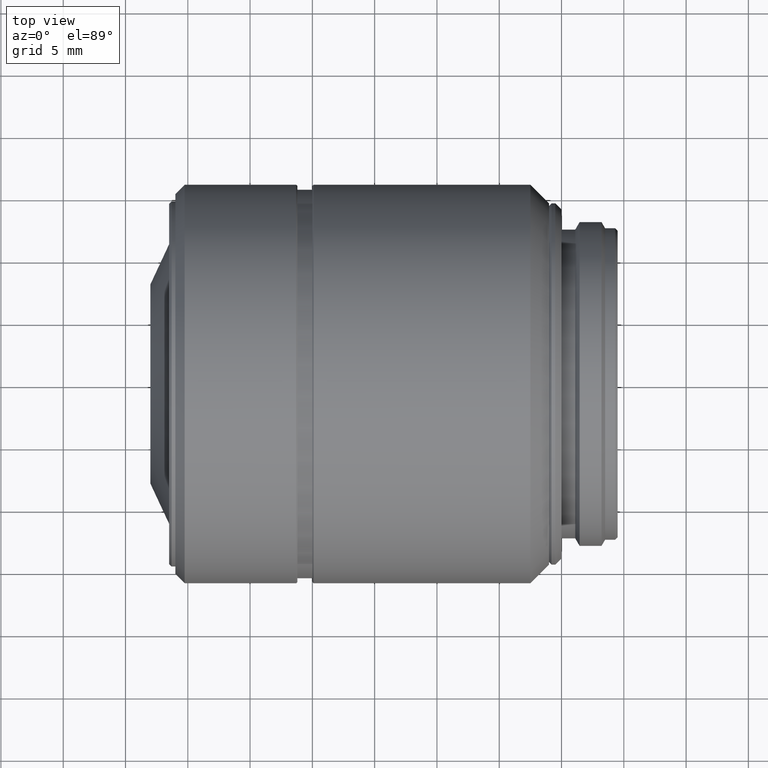
[diagram: clean part render]
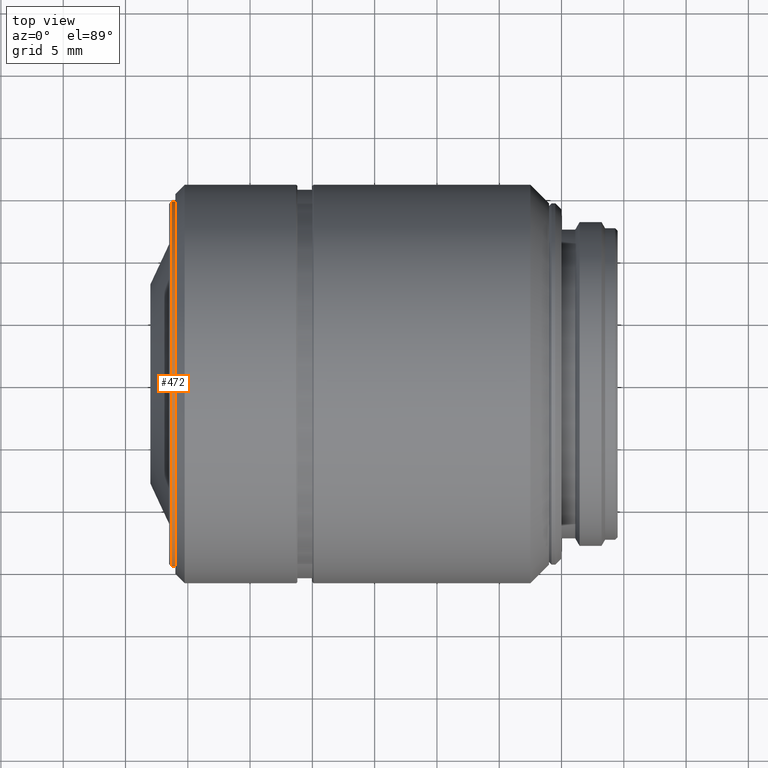
[diagram: same view with one face highlighted and labeled with its STEP entity id]
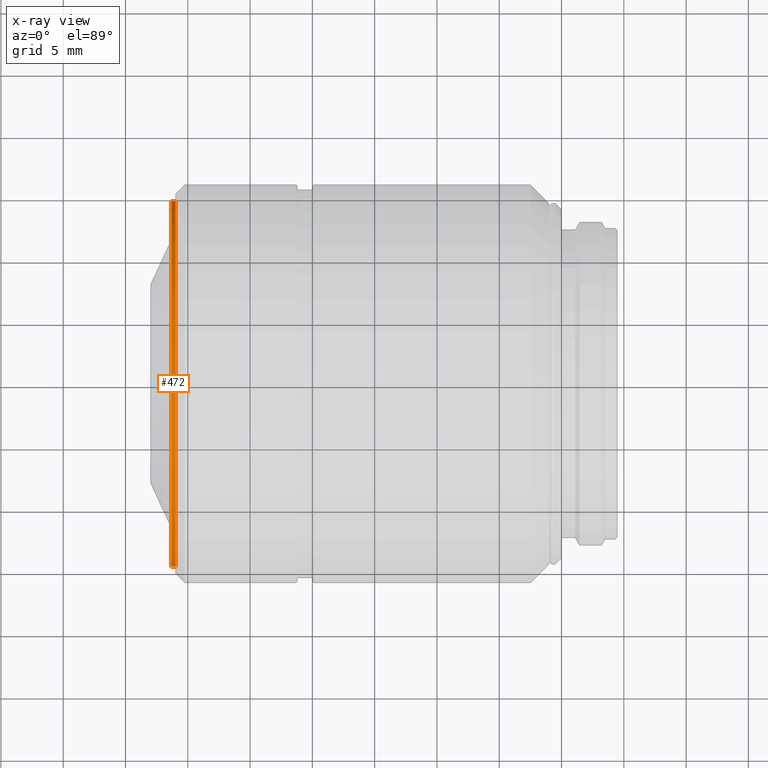
[diagram: x-ray of the same camera — body ghosted, the highlighted face saturated]
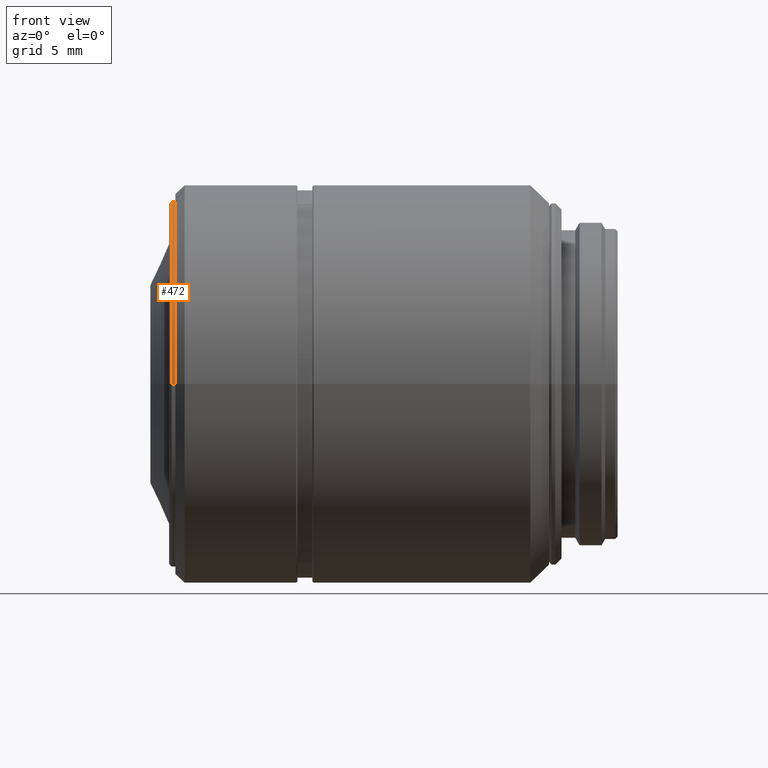
[diagram: same view with one face highlighted and labeled with its STEP entity id]
A machine part, top view. The second image highlights one B-rep face of the part: STEP entity #472.
The next image is the same camera in x-ray: the body ghosted, the highlighted face saturated — about 0% of this face is hidden behind the body in this view.
A second angle (front view) of the same face is appended — the face is thin or edge-on in the first view.
In plain terms, the highlighted cylindrical surface (partial cylindrical patch) has radius 14.65 mm, axis along (1, 0, 0).
Its self-contained STEP definition (entity closure, byte-faithful):
#5 = DIRECTION ( 'NONE',  ( 0.000000000000000000, -1.000000000000000000, 0.000000000000000000 ) ) ;
#24 = CARTESIAN_POINT ( 'NONE',  ( 13.89999999999999858, 0.000000000000000000, 0.000000000000000000 ) ) ;
#98 = AXIS2_PLACEMENT_3D ( 'NONE', #1113, #244, #145 ) ;
#127 = CARTESIAN_POINT ( 'NONE',  ( 14.00000000000000000, 14.64999978895130006, -1.794107534904870010E-15 ) ) ;
#145 = DIRECTION ( 'NONE',  ( 0.000000000000000000, 1.000000000000000000, 0.000000000000000000 ) ) ;
#207 = VERTEX_POINT ( 'NONE', #127 ) ;
#226 = EDGE_CURVE ( 'NONE', #1159, #1005, #510, .T. ) ;
#244 = DIRECTION ( 'NONE',  ( 1.000000000000000000, 0.000000000000000000, 0.000000000000000000 ) ) ;
#254 = CARTESIAN_POINT ( 'NONE',  ( 13.70000000000000107, 14.64999978895130006, -1.794107534904870010E-15 ) ) ;
#318 = CIRCLE ( 'NONE', #98, 14.64999978895130006 ) ;
#336 = CIRCLE ( 'NONE', #1071, 14.64999978895130006 ) ;
#400 = DIRECTION ( 'NONE',  ( 1.000000000000000000, 0.000000000000000000, 0.000000000000000000 ) ) ;
#472 = ADVANCED_FACE ( 'NONE', ( #577 ), #497, .T. ) ;
#497 = CYLINDRICAL_SURFACE ( 'NONE', #848, 14.64999978895130006 ) ;
#510 = LINE ( 'NONE', #708, #988 ) ;
#536 = ORIENTED_EDGE ( 'NONE', *, *, #226, .T. ) ;
#553 = ORIENTED_EDGE ( 'NONE', *, *, #978, .F. ) ;
#577 = FACE_OUTER_BOUND ( 'NONE', #893, .T. ) ;
#599 = LINE ( 'NONE', #968, #930 ) ;
#686 = EDGE_CURVE ( 'NONE', #1116, #1159, #336, .T. ) ;
#699 = DIRECTION ( 'NONE',  ( 1.000000000000000000, 0.000000000000000000, 0.000000000000000000 ) ) ;
#708 = CARTESIAN_POINT ( 'NONE',  ( 13.89999999999999858, -14.64999978895130006, 0.000000000000000000 ) ) ;
#710 = CARTESIAN_POINT ( 'NONE',  ( 14.00000000000000000, -14.64999978895130006, 0.000000000000000000 ) ) ;
#776 = DIRECTION ( 'NONE',  ( 1.000000000000000000, 0.000000000000000000, 0.000000000000000000 ) ) ;
#834 = CARTESIAN_POINT ( 'NONE',  ( 13.70000000000000107, -14.64999978895130006, 0.000000000000000000 ) ) ;
#848 = AXIS2_PLACEMENT_3D ( 'NONE', #24, #400, #5 ) ;
#876 = EDGE_CURVE ( 'NONE', #1116, #207, #599, .T. ) ;
#893 = EDGE_LOOP ( 'NONE', ( #536, #553, #1019, #1195 ) ) ;
#930 = VECTOR ( 'NONE', #699, 1000.000000000000000 ) ;
#961 = CARTESIAN_POINT ( 'NONE',  ( 13.70000000000000107, 0.000000000000000000, 0.000000000000000000 ) ) ;
#968 = CARTESIAN_POINT ( 'NONE',  ( 13.89999999999999858, 14.64999978895130006, -1.794107534904870010E-15 ) ) ;
#978 = EDGE_CURVE ( 'NONE', #207, #1005, #318, .T. ) ;
#988 = VECTOR ( 'NONE', #776, 1000.000000000000000 ) ;
#1005 = VERTEX_POINT ( 'NONE', #710 ) ;
#1019 = ORIENTED_EDGE ( 'NONE', *, *, #876, .F. ) ;
#1071 = AXIS2_PLACEMENT_3D ( 'NONE', #961, #1249, #1149 ) ;
#1113 = CARTESIAN_POINT ( 'NONE',  ( 14.00000000000000000, 0.000000000000000000, 0.000000000000000000 ) ) ;
#1116 = VERTEX_POINT ( 'NONE', #254 ) ;
#1149 = DIRECTION ( 'NONE',  ( 0.000000000000000000, 1.000000000000000000, 0.000000000000000000 ) ) ;
#1159 = VERTEX_POINT ( 'NONE', #834 ) ;
#1195 = ORIENTED_EDGE ( 'NONE', *, *, #686, .T. ) ;
#1249 = DIRECTION ( 'NONE',  ( 1.000000000000000000, 0.000000000000000000, 0.000000000000000000 ) ) ;